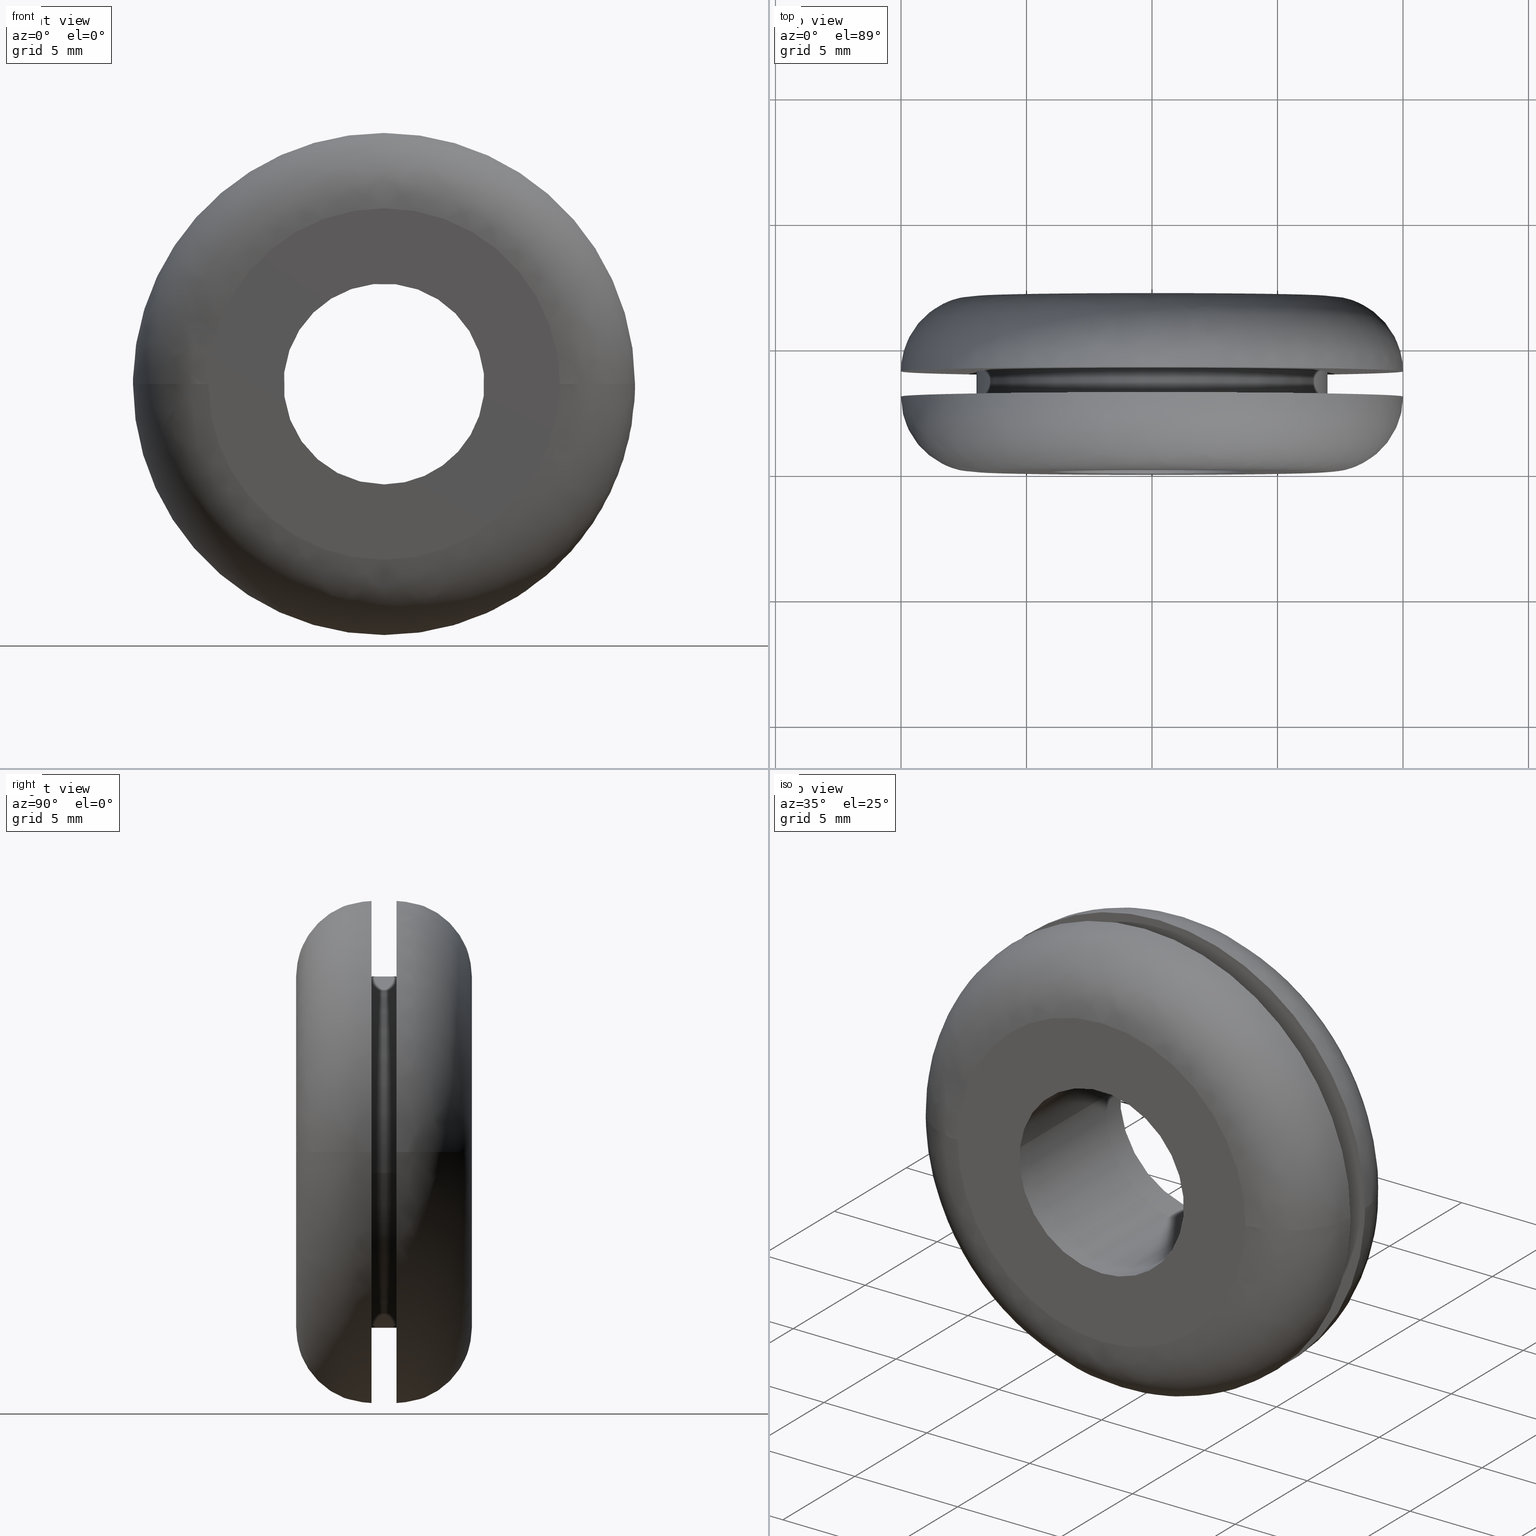
[diagram: canonical four-view strip — front | top / right | iso, engineering-drawing reading convention]
A machine part, canonical four-view strip (front | top / right | iso — engineering-drawing reading convention). The complete STEP part file that produces these views, byte-faithful:
ISO-10303-21;
HEADER;

FILE_DESCRIPTION( (''), '2;1');
FILE_NAME ('PC50.12492.TM_B_8_1_CRUL_3430.stp','2019-12-19T13:37:30',(''),(''),'spGate 15.6.1','','');

FILE_SCHEMA (('AUTOMOTIVE_DESIGN'));
ENDSEC;

DATA;
#10=(GEOMETRIC_REPRESENTATION_CONTEXT(3) GLOBAL_UNCERTAINTY_ASSIGNED_CONTEXT((#11)) GLOBAL_UNIT_ASSIGNED_CONTEXT((#12,#13,#14)) REPRESENTATION_CONTEXT('ID1','3D'));
#11=UNCERTAINTY_MEASURE_WITH_UNIT(LENGTH_MEASURE(0.01),#15,'DISTANCE_ACCURACY_VALUE','Maximum model space distance between geometric entities at asserted connectivities');
#12=(NAMED_UNIT(*) SI_UNIT($,.STERADIAN.) SOLID_ANGLE_UNIT());
#13=(CONVERSION_BASED_UNIT('DEGREE',#16) NAMED_UNIT(#17) PLANE_ANGLE_UNIT());
#14=(LENGTH_UNIT() NAMED_UNIT(*) SI_UNIT(.MILLI.,.METRE.));
#15=(LENGTH_UNIT() NAMED_UNIT(*) SI_UNIT(.MILLI.,.METRE.));
#16=PLANE_ANGLE_MEASURE_WITH_UNIT(PLANE_ANGLE_MEASURE(0.01745329252),#18);
#17=DIMENSIONAL_EXPONENTS(0.0,0.0,0.0,0.0,0.0,0.0,0.0);
#18=(NAMED_UNIT(*) PLANE_ANGLE_UNIT() SI_UNIT($,.RADIAN.));
#19=MANIFOLD_SOLID_BREP('TM_B_8_1',#31);
#20=ADVANCED_BREP_SHAPE_REPRESENTATION('',(#19),#10);
#21=APPLICATION_CONTEXT('');
#22=APPLICATION_PROTOCOL_DEFINITION('International Standard','automotive_design',1999,#21);
#23=PRODUCT_DEFINITION_CONTEXT('',#21,'design');
#24=PRODUCT_CONTEXT('',#21,'mechanical');
#25=PRODUCT('','','',(#24));
#26=PRODUCT_DEFINITION_FORMATION_WITH_SPECIFIED_SOURCE('','',#25,.NOT_KNOWN.);
#27=PRODUCT_RELATED_PRODUCT_CATEGORY('tool','tool',(#25));
#28=PRODUCT_DEFINITION('','',#26,#23);
#29=PRODUCT_DEFINITION_SHAPE('','',#28);
#30=SHAPE_DEFINITION_REPRESENTATION(#29,#20);
#31=CLOSED_SHELL('',(#40,#41,#42,#43,#44,#45,#46,#47,#48,#49,#50,#51));
#32=COLOUR_RGB('',0.00000000000E+000,0.00000000000E+000,0.00000000000E+000);
#33=FILL_AREA_STYLE_COLOUR('',#32);
#34=FILL_AREA_STYLE('',(#33));
#35=SURFACE_STYLE_FILL_AREA(#34);
#36=SURFACE_SIDE_STYLE('',(#35));
#37=SURFACE_STYLE_USAGE(.BOTH.,#36);
#38=PRESENTATION_STYLE_ASSIGNMENT((#37));
#39=STYLED_ITEM('',(#38),#19);
#40=ADVANCED_FACE('',(#53,#54),#52,.F.);
#41=ADVANCED_FACE('',(#64,#65),#63,.F.);
#42=ADVANCED_FACE('',(#75,#76),#74,.F.);
#43=ADVANCED_FACE('',(#86,#87),#85,.F.);
#44=ADVANCED_FACE('',(#97),#96,.T.);
#45=ADVANCED_FACE('',(#107),#106,.T.);
#46=ADVANCED_FACE('',(#117),#116,.F.);
#47=ADVANCED_FACE('',(#127),#126,.F.);
#48=ADVANCED_FACE('',(#137),#136,.T.);
#49=ADVANCED_FACE('',(#147),#146,.T.);
#50=ADVANCED_FACE('',(#157),#156,.T.);
#51=ADVANCED_FACE('',(#167),#166,.T.);
#52=PLANE('',#179);
#53=FACE_OUTER_BOUND('',#180,.T.);
#54=FACE_BOUND('',#181,.T.);
#55=COLOUR_RGB('',1.00000000000E+000,1.00000000000E+000,1.00000000000E+000);
#56=FILL_AREA_STYLE_COLOUR('',#55);
#57=FILL_AREA_STYLE('',(#56));
#58=SURFACE_STYLE_FILL_AREA(#57);
#59=SURFACE_SIDE_STYLE('',(#58));
#60=SURFACE_STYLE_USAGE(.BOTH.,#59);
#61=PRESENTATION_STYLE_ASSIGNMENT((#60));
#62=STYLED_ITEM('',(#61),#40);
#63=PLANE('',#185);
#64=FACE_OUTER_BOUND('',#186,.T.);
#65=FACE_BOUND('',#187,.T.);
#66=COLOUR_RGB('',1.00000000000E+000,1.00000000000E+000,1.00000000000E+000);
#67=FILL_AREA_STYLE_COLOUR('',#66);
#68=FILL_AREA_STYLE('',(#67));
#69=SURFACE_STYLE_FILL_AREA(#68);
#70=SURFACE_SIDE_STYLE('',(#69));
#71=SURFACE_STYLE_USAGE(.BOTH.,#70);
#72=PRESENTATION_STYLE_ASSIGNMENT((#71));
#73=STYLED_ITEM('',(#72),#41);
#74=PLANE('',#191);
#75=FACE_OUTER_BOUND('',#192,.T.);
#76=FACE_BOUND('',#193,.T.);
#77=COLOUR_RGB('',1.00000000000E+000,1.00000000000E+000,1.00000000000E+000);
#78=FILL_AREA_STYLE_COLOUR('',#77);
#79=FILL_AREA_STYLE('',(#78));
#80=SURFACE_STYLE_FILL_AREA(#79);
#81=SURFACE_SIDE_STYLE('',(#80));
#82=SURFACE_STYLE_USAGE(.BOTH.,#81);
#83=PRESENTATION_STYLE_ASSIGNMENT((#82));
#84=STYLED_ITEM('',(#83),#42);
#85=PLANE('',#197);
#86=FACE_OUTER_BOUND('',#198,.T.);
#87=FACE_BOUND('',#199,.T.);
#88=COLOUR_RGB('',1.00000000000E+000,1.00000000000E+000,1.00000000000E+000);
#89=FILL_AREA_STYLE_COLOUR('',#88);
#90=FILL_AREA_STYLE('',(#89));
#91=SURFACE_STYLE_FILL_AREA(#90);
#92=SURFACE_SIDE_STYLE('',(#91));
#93=SURFACE_STYLE_USAGE(.BOTH.,#92);
#94=PRESENTATION_STYLE_ASSIGNMENT((#93));
#95=STYLED_ITEM('',(#94),#43);
#96=CYLINDRICAL_SURFACE('',#203,7.00000000000E+000);
#97=FACE_OUTER_BOUND('',#204,.T.);
#98=COLOUR_RGB('',1.00000000000E+000,1.00000000000E+000,1.00000000000E+000);
#99=FILL_AREA_STYLE_COLOUR('',#98);
#100=FILL_AREA_STYLE('',(#99));
#101=SURFACE_STYLE_FILL_AREA(#100);
#102=SURFACE_SIDE_STYLE('',(#101));
#103=SURFACE_STYLE_USAGE(.BOTH.,#102);
#104=PRESENTATION_STYLE_ASSIGNMENT((#103));
#105=STYLED_ITEM('',(#104),#44);
#106=CYLINDRICAL_SURFACE('',#208,7.00000000000E+000);
#107=FACE_OUTER_BOUND('',#209,.T.);
#108=COLOUR_RGB('',1.00000000000E+000,1.00000000000E+000,1.00000000000E+000);
#109=FILL_AREA_STYLE_COLOUR('',#108);
#110=FILL_AREA_STYLE('',(#109));
#111=SURFACE_STYLE_FILL_AREA(#110);
#112=SURFACE_SIDE_STYLE('',(#111));
#113=SURFACE_STYLE_USAGE(.BOTH.,#112);
#114=PRESENTATION_STYLE_ASSIGNMENT((#113));
#115=STYLED_ITEM('',(#114),#45);
#116=CYLINDRICAL_SURFACE('',#213,4.00000000000E+000);
#117=FACE_OUTER_BOUND('',#214,.T.);
#118=COLOUR_RGB('',1.00000000000E+000,1.00000000000E+000,1.00000000000E+000);
#119=FILL_AREA_STYLE_COLOUR('',#118);
#120=FILL_AREA_STYLE('',(#119));
#121=SURFACE_STYLE_FILL_AREA(#120);
#122=SURFACE_SIDE_STYLE('',(#121));
#123=SURFACE_STYLE_USAGE(.BOTH.,#122);
#124=PRESENTATION_STYLE_ASSIGNMENT((#123));
#125=STYLED_ITEM('',(#124),#46);
#126=CYLINDRICAL_SURFACE('',#218,4.00000000000E+000);
#127=FACE_OUTER_BOUND('',#219,.T.);
#128=COLOUR_RGB('',1.00000000000E+000,1.00000000000E+000,1.00000000000E+000);
#129=FILL_AREA_STYLE_COLOUR('',#128);
#130=FILL_AREA_STYLE('',(#129));
#131=SURFACE_STYLE_FILL_AREA(#130);
#132=SURFACE_SIDE_STYLE('',(#131));
#133=SURFACE_STYLE_USAGE(.BOTH.,#132);
#134=PRESENTATION_STYLE_ASSIGNMENT((#133));
#135=STYLED_ITEM('',(#134),#47);
#136=( BOUNDED_SURFACE() B_SPLINE_SURFACE( 2,2,((#220,#221,#222,#223,#224),(#225,#226,#227,#228,#229),(#230,#231,#232,#233,#234),(#235,#236,#237,#238,#239),(#240,#241,#242,#243,#244)), .UNSPECIFIED.,.F.,.F.,.F.) B_SPLINE_SURFACE_WITH_KNOTS((3,2,3),(3,2,3),(0.00000000000E+000,5.00000000000E-001,1.00000000000E+000),(0.00000000000E+000,5.00000000000E-001,1.00000000000E+000), .UNSPECIFIED. ) GEOMETRIC_REPRESENTATION_ITEM() RATIONAL_B_SPLINE_SURFACE(((1.00000000000E+000,7.07106781055E-001,1.00000000000E+000,7.07106781055E-001,1.00000000000E+000),(7.07106781187E-001,4.99999999907E-001,7.07106781187E-001,4.99999999907E-001,7.07106781187E-001),(1.00000000000E+000,7.07106781055E-001,1.00000000000E+000,7.07106781055E-001,1.00000000000E+000),(7.07106781187E-001,4.99999999907E-001,7.07106781187E-001,4.99999999907E-001,7.07106781187E-001),(1.00000000000E+000,7.07106781055E-001,1.00000000000E+000,7.07106781055E-001,1.00000000000E+000))) REPRESENTATION_ITEM('') SURFACE() );
#137=FACE_OUTER_BOUND('',#245,.T.);
#138=COLOUR_RGB('',1.00000000000E+000,1.00000000000E+000,1.00000000000E+000);
#139=FILL_AREA_STYLE_COLOUR('',#138);
#140=FILL_AREA_STYLE('',(#139));
#141=SURFACE_STYLE_FILL_AREA(#140);
#142=SURFACE_SIDE_STYLE('',(#141));
#143=SURFACE_STYLE_USAGE(.BOTH.,#142);
#144=PRESENTATION_STYLE_ASSIGNMENT((#143));
#145=STYLED_ITEM('',(#144),#48);
#146=( BOUNDED_SURFACE() B_SPLINE_SURFACE( 2,2,((#246,#247,#248,#249,#250),(#251,#252,#253,#254,#255),(#256,#257,#258,#259,#260),(#261,#262,#263,#264,#265),(#266,#267,#268,#269,#270)), .UNSPECIFIED.,.F.,.F.,.F.) B_SPLINE_SURFACE_WITH_KNOTS((3,2,3),(3,2,3),(0.00000000000E+000,5.00000000000E-001,1.00000000000E+000),(0.00000000000E+000,5.00000000000E-001,1.00000000000E+000), .UNSPECIFIED. ) GEOMETRIC_REPRESENTATION_ITEM() RATIONAL_B_SPLINE_SURFACE(((1.00000000000E+000,7.07106781055E-001,1.00000000000E+000,7.07106781055E-001,1.00000000000E+000),(7.07106781187E-001,4.99999999907E-001,7.07106781187E-001,4.99999999907E-001,7.07106781187E-001),(1.00000000000E+000,7.07106781055E-001,1.00000000000E+000,7.07106781055E-001,1.00000000000E+000),(7.07106781187E-001,4.99999999907E-001,7.07106781187E-001,4.99999999907E-001,7.07106781187E-001),(1.00000000000E+000,7.07106781055E-001,1.00000000000E+000,7.07106781055E-001,1.00000000000E+000))) REPRESENTATION_ITEM('') SURFACE() );
#147=FACE_OUTER_BOUND('',#271,.T.);
#148=COLOUR_RGB('',1.00000000000E+000,1.00000000000E+000,1.00000000000E+000);
#149=FILL_AREA_STYLE_COLOUR('',#148);
#150=FILL_AREA_STYLE('',(#149));
#151=SURFACE_STYLE_FILL_AREA(#150);
#152=SURFACE_SIDE_STYLE('',(#151));
#153=SURFACE_STYLE_USAGE(.BOTH.,#152);
#154=PRESENTATION_STYLE_ASSIGNMENT((#153));
#155=STYLED_ITEM('',(#154),#49);
#156=( BOUNDED_SURFACE() B_SPLINE_SURFACE( 2,2,((#272,#273,#274,#275,#276),(#277,#278,#279,#280,#281),(#282,#283,#284,#285,#286),(#287,#288,#289,#290,#291),(#292,#293,#294,#295,#296)), .UNSPECIFIED.,.F.,.F.,.F.) B_SPLINE_SURFACE_WITH_KNOTS((3,2,3),(3,2,3),(0.00000000000E+000,5.00000000000E-001,1.00000000000E+000),(0.00000000000E+000,5.00000000000E-001,1.00000000000E+000), .UNSPECIFIED. ) GEOMETRIC_REPRESENTATION_ITEM() RATIONAL_B_SPLINE_SURFACE(((1.00000000000E+000,7.07106780997E-001,1.00000000000E+000,7.07106780997E-001,1.00000000000E+000),(7.07106781187E-001,4.99999999866E-001,7.07106781187E-001,4.99999999866E-001,7.07106781187E-001),(1.00000000000E+000,7.07106780997E-001,1.00000000000E+000,7.07106780997E-001,1.00000000000E+000),(7.07106781187E-001,4.99999999866E-001,7.07106781187E-001,4.99999999866E-001,7.07106781187E-001),(1.00000000000E+000,7.07106780997E-001,1.00000000000E+000,7.07106780997E-001,1.00000000000E+000))) REPRESENTATION_ITEM('') SURFACE() );
#157=FACE_OUTER_BOUND('',#297,.T.);
#158=COLOUR_RGB('',1.00000000000E+000,1.00000000000E+000,1.00000000000E+000);
#159=FILL_AREA_STYLE_COLOUR('',#158);
#160=FILL_AREA_STYLE('',(#159));
#161=SURFACE_STYLE_FILL_AREA(#160);
#162=SURFACE_SIDE_STYLE('',(#161));
#163=SURFACE_STYLE_USAGE(.BOTH.,#162);
#164=PRESENTATION_STYLE_ASSIGNMENT((#163));
#165=STYLED_ITEM('',(#164),#50);
#166=( BOUNDED_SURFACE() B_SPLINE_SURFACE( 2,2,((#298,#299,#300,#301,#302),(#303,#304,#305,#306,#307),(#308,#309,#310,#311,#312),(#313,#314,#315,#316,#317),(#318,#319,#320,#321,#322)), .UNSPECIFIED.,.F.,.F.,.F.) B_SPLINE_SURFACE_WITH_KNOTS((3,2,3),(3,2,3),(0.00000000000E+000,5.00000000000E-001,1.00000000000E+000),(0.00000000000E+000,5.00000000000E-001,1.00000000000E+000), .UNSPECIFIED. ) GEOMETRIC_REPRESENTATION_ITEM() RATIONAL_B_SPLINE_SURFACE(((1.00000000000E+000,7.07106780997E-001,1.00000000000E+000,7.07106780997E-001,1.00000000000E+000),(7.07106781187E-001,4.99999999866E-001,7.07106781187E-001,4.99999999866E-001,7.07106781187E-001),(1.00000000000E+000,7.07106780997E-001,1.00000000000E+000,7.07106780997E-001,1.00000000000E+000),(7.07106781187E-001,4.99999999866E-001,7.07106781187E-001,4.99999999866E-001,7.07106781187E-001),(1.00000000000E+000,7.07106780997E-001,1.00000000000E+000,7.07106780997E-001,1.00000000000E+000))) REPRESENTATION_ITEM('') SURFACE() );
#167=FACE_OUTER_BOUND('',#323,.T.);
#168=COLOUR_RGB('',1.00000000000E+000,1.00000000000E+000,1.00000000000E+000);
#169=FILL_AREA_STYLE_COLOUR('',#168);
#170=FILL_AREA_STYLE('',(#169));
#171=SURFACE_STYLE_FILL_AREA(#170);
#172=SURFACE_SIDE_STYLE('',(#171));
#173=SURFACE_STYLE_USAGE(.BOTH.,#172);
#174=PRESENTATION_STYLE_ASSIGNMENT((#173));
#175=STYLED_ITEM('',(#174),#51);
#176=CARTESIAN_POINT('',(-1.22114496217E+001,4.00000000000E+000,-1.20000000000E+001));
#177=DIRECTION('',(0.00000000000E+000,1.00000000000E+000,0.00000000000E+000));
#178=DIRECTION('',(0.00000000000E+000,0.00000000000E+000,1.00000000000E+000));
#179=AXIS2_PLACEMENT_3D('',#176,#177,#178);
#180=EDGE_LOOP('',(#324,#325,#326,#327,#328,#329));
#181=EDGE_LOOP('',(#330,#331,#332));
#182=CARTESIAN_POINT('',(-1.45492267838E+001,7.00000000000E+000,1.61000000002E+001));
#183=DIRECTION('',(0.00000000000E+000,-1.00000000000E+000,0.00000000000E+000));
#184=DIRECTION('',(0.00000000000E+000,0.00000000000E+000,-1.00000000000E+000));
#185=AXIS2_PLACEMENT_3D('',#182,#183,#184);
#186=EDGE_LOOP('',(#333,#334,#335));
#187=EDGE_LOOP('',(#336,#337,#338));
#188=CARTESIAN_POINT('',(-1.23054473375E+001,3.00000000000E+000,1.20000000000E+001));
#189=DIRECTION('',(0.00000000000E+000,-1.00000000000E+000,0.00000000000E+000));
#190=DIRECTION('',(0.00000000000E+000,0.00000000000E+000,-1.00000000000E+000));
#191=AXIS2_PLACEMENT_3D('',#188,#189,#190);
#192=EDGE_LOOP('',(#339,#340,#341,#342,#343,#344));
#193=EDGE_LOOP('',(#345,#346,#347));
#194=CARTESIAN_POINT('',(-1.45492267837E+001,-1.03351600000E-015,-1.61000000001E+001));
#195=DIRECTION('',(0.00000000000E+000,1.00000000000E+000,0.00000000000E+000));
#196=DIRECTION('',(0.00000000000E+000,0.00000000000E+000,1.00000000000E+000));
#197=AXIS2_PLACEMENT_3D('',#194,#195,#196);
#198=EDGE_LOOP('',(#348,#349,#350));
#199=EDGE_LOOP('',(#351,#352,#353));
#200=CARTESIAN_POINT('',(5.74092842048E-016,4.02500000000E+000,9.87831843366E-016));
#201=DIRECTION('',(5.05055682711E-016,1.00000000000E+000,4.78646234808E-015));
#202=DIRECTION('',(-9.93009526364E-001,-6.34413156929E-017,1.18034234657E-001));
#203=AXIS2_PLACEMENT_3D('',#200,#201,#202);
#204=EDGE_LOOP('',(#354,#355,#356,#357));
#205=CARTESIAN_POINT('',(5.74092842048E-016,4.02500000000E+000,9.87831843366E-016));
#206=DIRECTION('',(5.05055682711E-016,1.00000000000E+000,4.78646234808E-015));
#207=DIRECTION('',(-9.93009526364E-001,-6.34413156929E-017,1.18034234657E-001));
#208=AXIS2_PLACEMENT_3D('',#205,#206,#207);
#209=EDGE_LOOP('',(#358,#359,#360,#361,#362,#363));
#210=CARTESIAN_POINT('',(7.00264927072E-017,7.17500000000E+000,-1.45260831833E-015));
#211=DIRECTION('',(-4.60583929913E-017,1.00000000000E+000,-3.87484386562E-016));
#212=DIRECTION('',(-9.93009526364E-001,-1.47911419729E-031,1.18034234657E-001));
#213=AXIS2_PLACEMENT_3D('',#210,#211,#212);
#214=EDGE_LOOP('',(#364,#365,#366,#367));
#215=CARTESIAN_POINT('',(7.00264927072E-017,7.17500000000E+000,-1.45260831833E-015));
#216=DIRECTION('',(-4.60583929913E-017,1.00000000000E+000,-3.87484386562E-016));
#217=DIRECTION('',(-9.93009526364E-001,-1.47911419729E-031,1.18034234657E-001));
#218=AXIS2_PLACEMENT_3D('',#215,#216,#217);
#219=EDGE_LOOP('',(#368,#369,#370,#371,#372,#373));
#220=CARTESIAN_POINT('',(-1.00000000000E+001,3.00000000000E+000,-3.79958651348E-015));
#221=CARTESIAN_POINT('',(-1.00000000000E+001,-1.11198846633E-009,-4.43401791642E-015));
#222=CARTESIAN_POINT('',(-6.99999999889E+000,2.66453525910E-015,-4.06663600990E-015));
#223=CARTESIAN_POINT('',(-3.99999999778E+000,1.11199411866E-009,-3.69925410338E-015));
#224=CARTESIAN_POINT('',(-4.00000000000E+000,3.00000000222E+000,-3.06482270071E-015));
#225=CARTESIAN_POINT('',(-1.00000000000E+001,3.00000000000E+000,-1.00000000000E+001));
#226=CARTESIAN_POINT('',(-1.00000000000E+001,-1.11198653759E-009,-1.00000000000E+001));
#227=CARTESIAN_POINT('',(-6.99999999889E+000,3.84441556344E-015,-6.99999999889E+000));
#228=CARTESIAN_POINT('',(-3.99999999778E+000,1.11199526698E-009,-3.99999999778E+000));
#229=CARTESIAN_POINT('',(-4.00000000000E+000,3.00000000222E+000,-4.00000000000E+000));
#230=CARTESIAN_POINT('',(-1.98980225972E-015,3.00000000000E+000,-1.00000000000E+001));
#231=CARTESIAN_POINT('',(-2.65695287611E-015,-1.11198846633E-009,-1.00000000000E+001));
#232=CARTESIAN_POINT('',(-2.84063776221E-015,2.66453525910E-015,-6.99999999889E+000));
#233=CARTESIAN_POINT('',(-3.02432264830E-015,1.11199411866E-009,-3.99999999778E+000));
#234=CARTESIAN_POINT('',(-2.35717203177E-015,3.00000000222E+000,-4.00000000000E+000));
#235=CARTESIAN_POINT('',(1.00000000000E+001,3.00000000000E+000,-1.00000000000E+001));
#236=CARTESIAN_POINT('',(1.00000000000E+001,-1.11199123862E-009,-1.00000000000E+001));
#237=CARTESIAN_POINT('',(6.99999999889E+000,8.88178419700E-016,-6.99999999889E+000));
#238=CARTESIAN_POINT('',(3.99999999778E+000,1.11199349063E-009,-3.99999999778E+000));
#239=CARTESIAN_POINT('',(4.00000000000E+000,3.00000000222E+000,-4.00000000000E+000));
#240=CARTESIAN_POINT('',(1.00000000000E+001,3.00000000000E+000,-2.57502060498E-015));
#241=CARTESIAN_POINT('',(1.00000000000E+001,-1.11199286259E-009,-3.20945200792E-015));
#242=CARTESIAN_POINT('',(6.99999999889E+000,-4.44089209850E-016,-3.20943987409E-015));
#243=CARTESIAN_POINT('',(3.99999999778E+000,1.11199223455E-009,-3.20942774026E-015));
#244=CARTESIAN_POINT('',(4.00000000000E+000,3.00000000222E+000,-2.57499633731E-015));
#245=EDGE_LOOP('',(#374,#375,#376,#377,#378,#379));
#246=CARTESIAN_POINT('',(1.00000000000E+001,3.00000000000E+000,-2.57502060498E-015));
#247=CARTESIAN_POINT('',(1.00000000000E+001,-1.11199349063E-009,-3.20945200792E-015));
#248=CARTESIAN_POINT('',(6.99999999889E+000,-8.88178419700E-016,-3.20943987409E-015));
#249=CARTESIAN_POINT('',(3.99999999778E+000,1.11199160652E-009,-3.20942774026E-015));
#250=CARTESIAN_POINT('',(4.00000000000E+000,3.00000000222E+000,-2.57499633731E-015));
#251=CARTESIAN_POINT('',(1.00000000000E+001,3.00000000000E+000,1.00000000000E+001));
#252=CARTESIAN_POINT('',(1.00000000000E+001,-1.11199541937E-009,1.00000000000E+001));
#253=CARTESIAN_POINT('',(6.99999999889E+000,-2.06805872404E-015,6.99999999889E+000));
#254=CARTESIAN_POINT('',(3.99999999778E+000,1.11199045820E-009,3.99999999778E+000));
#255=CARTESIAN_POINT('',(4.00000000000E+000,3.00000000222E+000,4.00000000000E+000));
#256=CARTESIAN_POINT('',(-1.98972136907E-015,3.00000000000E+000,1.00000000000E+001));
#257=CARTESIAN_POINT('',(-2.65687198546E-015,-1.11199349063E-009,1.00000000000E+001));
#258=CARTESIAN_POINT('',(-2.84058113875E-015,-8.88178419700E-016,6.99999999889E+000));
#259=CARTESIAN_POINT('',(-3.02429029204E-015,1.11199160652E-009,3.99999999778E+000));
#260=CARTESIAN_POINT('',(-2.35713967551E-015,3.00000000222E+000,4.00000000000E+000));
#261=CARTESIAN_POINT('',(-1.00000000000E+001,3.00000000000E+000,1.00000000000E+001));
#262=CARTESIAN_POINT('',(-1.00000000000E+001,-1.11199071834E-009,1.00000000000E+001));
#263=CARTESIAN_POINT('',(-6.99999999889E+000,8.88178419700E-016,6.99999999889E+000));
#264=CARTESIAN_POINT('',(-3.99999999778E+000,1.11199223455E-009,3.99999999778E+000));
#265=CARTESIAN_POINT('',(-4.00000000000E+000,3.00000000222E+000,4.00000000000E+000));
#266=CARTESIAN_POINT('',(-1.00000000000E+001,3.00000000000E+000,-1.35029291518E-015));
#267=CARTESIAN_POINT('',(-1.00000000000E+001,-1.11198909437E-009,-1.98472431813E-015));
#268=CARTESIAN_POINT('',(-6.99999999889E+000,2.22044604925E-015,-2.35213049137E-015));
#269=CARTESIAN_POINT('',(-3.99999999778E+000,1.11199349063E-009,-2.71953666461E-015));
#270=CARTESIAN_POINT('',(-4.00000000000E+000,3.00000000222E+000,-2.08510526139E-015));
#271=EDGE_LOOP('',(#380,#381,#382,#383,#384,#385,#386));
#272=CARTESIAN_POINT('',(-4.00000000002E+000,3.99999999678E+000,3.23415556568E-013));
#273=CARTESIAN_POINT('',(-3.99999999679E+000,6.99999999839E+000,2.49298796170E-013));
#274=CARTESIAN_POINT('',(-6.99999999840E+000,7.00000000001E+000,2.48931414224E-013));
#275=CARTESIAN_POINT('',(-1.00000000000E+001,7.00000000162E+000,2.48564032278E-013));
#276=CARTESIAN_POINT('',(-1.00000000000E+001,4.00000000001E+000,3.22680792676E-013));
#277=CARTESIAN_POINT('',(-4.00000000002E+000,3.99999999678E+000,-4.00000000001E+000));
#278=CARTESIAN_POINT('',(-3.99999999679E+000,6.99999999839E+000,-3.99999999678E+000));
#279=CARTESIAN_POINT('',(-6.99999999840E+000,7.00000000001E+000,-6.99999999840E+000));
#280=CARTESIAN_POINT('',(-1.00000000000E+001,7.00000000162E+000,-1.00000000000E+001));
#281=CARTESIAN_POINT('',(-1.00000000000E+001,4.00000000001E+000,-1.00000000000E+001));
#282=CARTESIAN_POINT('',(-8.02198380323E-012,3.99999999678E+000,-4.00000000001E+000));
#283=CARTESIAN_POINT('',(-6.38576301356E-012,6.99999999839E+000,-3.99999999678E+000));
#284=CARTESIAN_POINT('',(-6.38557932779E-012,7.00000000000E+000,-6.99999999840E+000));
#285=CARTESIAN_POINT('',(-6.38539564202E-012,7.00000000162E+000,-1.00000000000E+001));
#286=CARTESIAN_POINT('',(-8.02161643170E-012,4.00000000000E+000,-1.00000000000E+001));
#287=CARTESIAN_POINT('',(4.00000000000E+000,3.99999999678E+000,-4.00000000001E+000));
#288=CARTESIAN_POINT('',(3.99999999678E+000,6.99999999839E+000,-3.99999999678E+000));
#289=CARTESIAN_POINT('',(6.99999999839E+000,7.00000000000E+000,-6.99999999840E+000));
#290=CARTESIAN_POINT('',(1.00000000000E+001,7.00000000161E+000,-1.00000000000E+001));
#291=CARTESIAN_POINT('',(1.00000000000E+001,4.00000000000E+000,-1.00000000000E+001));
#292=CARTESIAN_POINT('',(4.00000000000E+000,3.99999999678E+000,3.23905382932E-013));
#293=CARTESIAN_POINT('',(3.99999999678E+000,6.99999999839E+000,2.49788622533E-013));
#294=CARTESIAN_POINT('',(6.99999999839E+000,7.00000000000E+000,2.49788610360E-013));
#295=CARTESIAN_POINT('',(1.00000000000E+001,7.00000000161E+000,2.49788598186E-013));
#296=CARTESIAN_POINT('',(1.00000000000E+001,4.00000000000E+000,3.23905358585E-013));
#297=EDGE_LOOP('',(#387,#388,#389,#390,#391,#392,#393));
#298=CARTESIAN_POINT('',(4.00000000000E+000,3.99999999678E+000,3.23905382932E-013));
#299=CARTESIAN_POINT('',(3.99999999678E+000,6.99999999839E+000,2.49788622533E-013));
#300=CARTESIAN_POINT('',(6.99999999839E+000,7.00000000000E+000,2.49788610360E-013));
#301=CARTESIAN_POINT('',(1.00000000000E+001,7.00000000161E+000,2.49788598186E-013));
#302=CARTESIAN_POINT('',(1.00000000000E+001,4.00000000000E+000,3.23905358585E-013));
#303=CARTESIAN_POINT('',(4.00000000000E+000,3.99999999678E+000,4.00000000001E+000));
#304=CARTESIAN_POINT('',(3.99999999678E+000,6.99999999839E+000,3.99999999678E+000));
#305=CARTESIAN_POINT('',(6.99999999839E+000,7.00000000000E+000,6.99999999840E+000));
#306=CARTESIAN_POINT('',(1.00000000000E+001,7.00000000161E+000,1.00000000000E+001));
#307=CARTESIAN_POINT('',(1.00000000000E+001,4.00000000000E+000,1.00000000000E+001));
#308=CARTESIAN_POINT('',(-8.02198377088E-012,3.99999999678E+000,4.00000000001E+000));
#309=CARTESIAN_POINT('',(-6.38576298120E-012,6.99999999839E+000,3.99999999678E+000));
#310=CARTESIAN_POINT('',(-6.38557927117E-012,7.00000000000E+000,6.99999999840E+000));
#311=CARTESIAN_POINT('',(-6.38539556113E-012,7.00000000162E+000,1.00000000000E+001));
#312=CARTESIAN_POINT('',(-8.02161635081E-012,4.00000000000E+000,1.00000000000E+001));
#313=CARTESIAN_POINT('',(-4.00000000002E+000,3.99999999678E+000,4.00000000001E+000));
#314=CARTESIAN_POINT('',(-3.99999999679E+000,6.99999999839E+000,3.99999999678E+000));
#315=CARTESIAN_POINT('',(-6.99999999840E+000,7.00000000001E+000,6.99999999840E+000));
#316=CARTESIAN_POINT('',(-1.00000000000E+001,7.00000000162E+000,1.00000000000E+001));
#317=CARTESIAN_POINT('',(-1.00000000000E+001,4.00000000001E+000,1.00000000000E+001));
#318=CARTESIAN_POINT('',(-4.00000000002E+000,3.99999999678E+000,3.24395274007E-013));
#319=CARTESIAN_POINT('',(-3.99999999679E+000,6.99999999839E+000,2.50278513609E-013));
#320=CARTESIAN_POINT('',(-6.99999999840E+000,7.00000000001E+000,2.50645919742E-013));
#321=CARTESIAN_POINT('',(-1.00000000000E+001,7.00000000162E+000,2.51013325876E-013));
#322=CARTESIAN_POINT('',(-1.00000000000E+001,4.00000000001E+000,3.25130086275E-013));
#323=EDGE_LOOP('',(#394,#395,#396,#397,#398,#399));
#324=ORIENTED_EDGE('',*,*,#400,.T.);
#325=ORIENTED_EDGE('',*,*,#401,.T.);
#326=ORIENTED_EDGE('',*,*,#402,.T.);
#327=ORIENTED_EDGE('',*,*,#403,.T.);
#328=ORIENTED_EDGE('',*,*,#404,.T.);
#329=ORIENTED_EDGE('',*,*,#405,.T.);
#330=ORIENTED_EDGE('',*,*,#406,.F.);
#331=ORIENTED_EDGE('',*,*,#407,.F.);
#332=ORIENTED_EDGE('',*,*,#408,.F.);
#333=ORIENTED_EDGE('',*,*,#409,.F.);
#334=ORIENTED_EDGE('',*,*,#410,.F.);
#335=ORIENTED_EDGE('',*,*,#411,.F.);
#336=ORIENTED_EDGE('',*,*,#412,.T.);
#337=ORIENTED_EDGE('',*,*,#413,.T.);
#338=ORIENTED_EDGE('',*,*,#414,.T.);
#339=ORIENTED_EDGE('',*,*,#415,.F.);
#340=ORIENTED_EDGE('',*,*,#416,.F.);
#341=ORIENTED_EDGE('',*,*,#417,.F.);
#342=ORIENTED_EDGE('',*,*,#418,.F.);
#343=ORIENTED_EDGE('',*,*,#419,.F.);
#344=ORIENTED_EDGE('',*,*,#420,.F.);
#345=ORIENTED_EDGE('',*,*,#421,.T.);
#346=ORIENTED_EDGE('',*,*,#422,.T.);
#347=ORIENTED_EDGE('',*,*,#423,.T.);
#348=ORIENTED_EDGE('',*,*,#424,.T.);
#349=ORIENTED_EDGE('',*,*,#425,.T.);
#350=ORIENTED_EDGE('',*,*,#426,.T.);
#351=ORIENTED_EDGE('',*,*,#427,.F.);
#352=ORIENTED_EDGE('',*,*,#428,.F.);
#353=ORIENTED_EDGE('',*,*,#429,.F.);
#354=ORIENTED_EDGE('',*,*,#407,.T.);
#355=ORIENTED_EDGE('',*,*,#430,.F.);
#356=ORIENTED_EDGE('',*,*,#422,.F.);
#357=ORIENTED_EDGE('',*,*,#431,.T.);
#358=ORIENTED_EDGE('',*,*,#421,.F.);
#359=ORIENTED_EDGE('',*,*,#423,.F.);
#360=ORIENTED_EDGE('',*,*,#430,.T.);
#361=ORIENTED_EDGE('',*,*,#406,.T.);
#362=ORIENTED_EDGE('',*,*,#408,.T.);
#363=ORIENTED_EDGE('',*,*,#431,.F.);
#364=ORIENTED_EDGE('',*,*,#428,.T.);
#365=ORIENTED_EDGE('',*,*,#432,.T.);
#366=ORIENTED_EDGE('',*,*,#413,.F.);
#367=ORIENTED_EDGE('',*,*,#433,.F.);
#368=ORIENTED_EDGE('',*,*,#412,.F.);
#369=ORIENTED_EDGE('',*,*,#414,.F.);
#370=ORIENTED_EDGE('',*,*,#432,.F.);
#371=ORIENTED_EDGE('',*,*,#427,.T.);
#372=ORIENTED_EDGE('',*,*,#429,.T.);
#373=ORIENTED_EDGE('',*,*,#433,.T.);
#374=ORIENTED_EDGE('',*,*,#425,.F.);
#375=ORIENTED_EDGE('',*,*,#434,.F.);
#376=ORIENTED_EDGE('',*,*,#415,.T.);
#377=ORIENTED_EDGE('',*,*,#420,.T.);
#378=ORIENTED_EDGE('',*,*,#419,.T.);
#379=ORIENTED_EDGE('',*,*,#435,.T.);
#380=ORIENTED_EDGE('',*,*,#418,.T.);
#381=ORIENTED_EDGE('',*,*,#417,.T.);
#382=ORIENTED_EDGE('',*,*,#416,.T.);
#383=ORIENTED_EDGE('',*,*,#434,.T.);
#384=ORIENTED_EDGE('',*,*,#424,.F.);
#385=ORIENTED_EDGE('',*,*,#426,.F.);
#386=ORIENTED_EDGE('',*,*,#435,.F.);
#387=ORIENTED_EDGE('',*,*,#401,.F.);
#388=ORIENTED_EDGE('',*,*,#400,.F.);
#389=ORIENTED_EDGE('',*,*,#405,.F.);
#390=ORIENTED_EDGE('',*,*,#436,.F.);
#391=ORIENTED_EDGE('',*,*,#409,.T.);
#392=ORIENTED_EDGE('',*,*,#411,.T.);
#393=ORIENTED_EDGE('',*,*,#437,.T.);
#394=ORIENTED_EDGE('',*,*,#410,.T.);
#395=ORIENTED_EDGE('',*,*,#436,.T.);
#396=ORIENTED_EDGE('',*,*,#404,.F.);
#397=ORIENTED_EDGE('',*,*,#403,.F.);
#398=ORIENTED_EDGE('',*,*,#402,.F.);
#399=ORIENTED_EDGE('',*,*,#437,.F.);
#400=EDGE_CURVE('',#438,#439,#440,.T.);
#401=EDGE_CURVE('',#439,#446,#447,.T.);
#402=EDGE_CURVE('',#446,#453,#454,.T.);
#403=EDGE_CURVE('',#453,#460,#461,.T.);
#404=EDGE_CURVE('',#460,#467,#468,.T.);
#405=EDGE_CURVE('',#467,#438,#474,.T.);
#406=EDGE_CURVE('',#480,#481,#482,.T.);
#407=EDGE_CURVE('',#488,#480,#489,.T.);
#408=EDGE_CURVE('',#481,#488,#495,.T.);
#409=EDGE_CURVE('',#501,#502,#503,.T.);
#410=EDGE_CURVE('',#509,#501,#510,.T.);
#411=EDGE_CURVE('',#502,#509,#516,.T.);
#412=EDGE_CURVE('',#522,#523,#524,.T.);
#413=EDGE_CURVE('',#523,#530,#531,.T.);
#414=EDGE_CURVE('',#530,#522,#537,.T.);
#415=EDGE_CURVE('',#543,#544,#545,.T.);
#416=EDGE_CURVE('',#551,#543,#552,.T.);
#417=EDGE_CURVE('',#558,#551,#559,.T.);
#418=EDGE_CURVE('',#565,#558,#566,.T.);
#419=EDGE_CURVE('',#572,#565,#573,.T.);
#420=EDGE_CURVE('',#544,#572,#579,.T.);
#421=EDGE_CURVE('',#585,#586,#587,.T.);
#422=EDGE_CURVE('',#586,#593,#594,.T.);
#423=EDGE_CURVE('',#593,#585,#600,.T.);
#424=EDGE_CURVE('',#606,#607,#608,.T.);
#425=EDGE_CURVE('',#607,#614,#615,.T.);
#426=EDGE_CURVE('',#614,#606,#621,.T.);
#427=EDGE_CURVE('',#627,#628,#629,.T.);
#428=EDGE_CURVE('',#635,#627,#636,.T.);
#429=EDGE_CURVE('',#628,#635,#642,.T.);
#430=EDGE_CURVE('',#593,#480,#648,.T.);
#431=EDGE_CURVE('',#586,#488,#654,.T.);
#432=EDGE_CURVE('',#627,#530,#660,.T.);
#433=EDGE_CURVE('',#635,#523,#666,.T.);
#434=EDGE_CURVE('',#543,#607,#672,.T.);
#435=EDGE_CURVE('',#565,#614,#678,.T.);
#436=EDGE_CURVE('',#501,#467,#684,.T.);
#437=EDGE_CURVE('',#509,#446,#690,.T.);
#438=VERTEX_POINT('',#696);
#439=VERTEX_POINT('',#697);
#440=CIRCLE('',#701,1.00000000007E+001);
#441=COLOUR_RGB('',1.00000000000E+000,1.00000000000E+000,1.00000000000E+000);
#442=DRAUGHTING_PRE_DEFINED_CURVE_FONT('continuous');
#443=CURVE_STYLE( '',#442, POSITIVE_LENGTH_MEASURE(1.00000000000E-006),#441);
#444=PRESENTATION_STYLE_ASSIGNMENT((#443));
#445=STYLED_ITEM('',(#444),#400);
#446=VERTEX_POINT('',#702);
#447=CIRCLE('',#706,1.00000000000E+001);
#448=COLOUR_RGB('',1.00000000000E+000,1.00000000000E+000,1.00000000000E+000);
#449=DRAUGHTING_PRE_DEFINED_CURVE_FONT('continuous');
#450=CURVE_STYLE( '',#449, POSITIVE_LENGTH_MEASURE(1.00000000000E-006),#448);
#451=PRESENTATION_STYLE_ASSIGNMENT((#450));
#452=STYLED_ITEM('',(#451),#401);
#453=VERTEX_POINT('',#707);
#454=CIRCLE('',#711,1.00000000000E+001);
#455=COLOUR_RGB('',1.00000000000E+000,1.00000000000E+000,1.00000000000E+000);
#456=DRAUGHTING_PRE_DEFINED_CURVE_FONT('continuous');
#457=CURVE_STYLE( '',#456, POSITIVE_LENGTH_MEASURE(1.00000000000E-006),#455);
#458=PRESENTATION_STYLE_ASSIGNMENT((#457));
#459=STYLED_ITEM('',(#458),#402);
#460=VERTEX_POINT('',#712);
#461=CIRCLE('',#716,1.00000000000E+001);
#462=COLOUR_RGB('',1.00000000000E+000,1.00000000000E+000,1.00000000000E+000);
#463=DRAUGHTING_PRE_DEFINED_CURVE_FONT('continuous');
#464=CURVE_STYLE( '',#463, POSITIVE_LENGTH_MEASURE(1.00000000000E-006),#462);
#465=PRESENTATION_STYLE_ASSIGNMENT((#464));
#466=STYLED_ITEM('',(#465),#403);
#467=VERTEX_POINT('',#717);
#468=CIRCLE('',#721,1.00000000000E+001);
#469=COLOUR_RGB('',1.00000000000E+000,1.00000000000E+000,1.00000000000E+000);
#470=DRAUGHTING_PRE_DEFINED_CURVE_FONT('continuous');
#471=CURVE_STYLE( '',#470, POSITIVE_LENGTH_MEASURE(1.00000000000E-006),#469);
#472=PRESENTATION_STYLE_ASSIGNMENT((#471));
#473=STYLED_ITEM('',(#472),#404);
#474=CIRCLE('',#725,1.00000000000E+001);
#475=COLOUR_RGB('',1.00000000000E+000,1.00000000000E+000,1.00000000000E+000);
#476=DRAUGHTING_PRE_DEFINED_CURVE_FONT('continuous');
#477=CURVE_STYLE( '',#476, POSITIVE_LENGTH_MEASURE(1.00000000000E-006),#475);
#478=PRESENTATION_STYLE_ASSIGNMENT((#477));
#479=STYLED_ITEM('',(#478),#405);
#480=VERTEX_POINT('',#726);
#481=VERTEX_POINT('',#727);
#482=CIRCLE('',#731,7.00000000000E+000);
#483=COLOUR_RGB('',1.00000000000E+000,1.00000000000E+000,1.00000000000E+000);
#484=DRAUGHTING_PRE_DEFINED_CURVE_FONT('continuous');
#485=CURVE_STYLE( '',#484, POSITIVE_LENGTH_MEASURE(1.00000000000E-006),#483);
#486=PRESENTATION_STYLE_ASSIGNMENT((#485));
#487=STYLED_ITEM('',(#486),#406);
#488=VERTEX_POINT('',#732);
#489=CIRCLE('',#736,7.00000000000E+000);
#490=COLOUR_RGB('',1.00000000000E+000,1.00000000000E+000,1.00000000000E+000);
#491=DRAUGHTING_PRE_DEFINED_CURVE_FONT('continuous');
#492=CURVE_STYLE( '',#491, POSITIVE_LENGTH_MEASURE(1.00000000000E-006),#490);
#493=PRESENTATION_STYLE_ASSIGNMENT((#492));
#494=STYLED_ITEM('',(#493),#407);
#495=CIRCLE('',#740,7.00000000000E+000);
#496=COLOUR_RGB('',1.00000000000E+000,1.00000000000E+000,1.00000000000E+000);
#497=DRAUGHTING_PRE_DEFINED_CURVE_FONT('continuous');
#498=CURVE_STYLE( '',#497, POSITIVE_LENGTH_MEASURE(1.00000000000E-006),#496);
#499=PRESENTATION_STYLE_ASSIGNMENT((#498));
#500=STYLED_ITEM('',(#499),#408);
#501=VERTEX_POINT('',#741);
#502=VERTEX_POINT('',#742);
#503=CIRCLE('',#746,7.00000000011E+000);
#504=COLOUR_RGB('',1.00000000000E+000,1.00000000000E+000,1.00000000000E+000);
#505=DRAUGHTING_PRE_DEFINED_CURVE_FONT('continuous');
#506=CURVE_STYLE( '',#505, POSITIVE_LENGTH_MEASURE(1.00000000000E-006),#504);
#507=PRESENTATION_STYLE_ASSIGNMENT((#506));
#508=STYLED_ITEM('',(#507),#409);
#509=VERTEX_POINT('',#747);
#510=CIRCLE('',#751,7.00000000011E+000);
#511=COLOUR_RGB('',1.00000000000E+000,1.00000000000E+000,1.00000000000E+000);
#512=DRAUGHTING_PRE_DEFINED_CURVE_FONT('continuous');
#513=CURVE_STYLE( '',#512, POSITIVE_LENGTH_MEASURE(1.00000000000E-006),#511);
#514=PRESENTATION_STYLE_ASSIGNMENT((#513));
#515=STYLED_ITEM('',(#514),#410);
#516=CIRCLE('',#755,7.00000000011E+000);
#517=COLOUR_RGB('',1.00000000000E+000,1.00000000000E+000,1.00000000000E+000);
#518=DRAUGHTING_PRE_DEFINED_CURVE_FONT('continuous');
#519=CURVE_STYLE( '',#518, POSITIVE_LENGTH_MEASURE(1.00000000000E-006),#517);
#520=PRESENTATION_STYLE_ASSIGNMENT((#519));
#521=STYLED_ITEM('',(#520),#411);
#522=VERTEX_POINT('',#756);
#523=VERTEX_POINT('',#757);
#524=CIRCLE('',#761,3.99999999999E+000);
#525=COLOUR_RGB('',1.00000000000E+000,1.00000000000E+000,1.00000000000E+000);
#526=DRAUGHTING_PRE_DEFINED_CURVE_FONT('continuous');
#527=CURVE_STYLE( '',#526, POSITIVE_LENGTH_MEASURE(1.00000000000E-006),#525);
#528=PRESENTATION_STYLE_ASSIGNMENT((#527));
#529=STYLED_ITEM('',(#528),#412);
#530=VERTEX_POINT('',#762);
#531=CIRCLE('',#766,3.99999999999E+000);
#532=COLOUR_RGB('',1.00000000000E+000,1.00000000000E+000,1.00000000000E+000);
#533=DRAUGHTING_PRE_DEFINED_CURVE_FONT('continuous');
#534=CURVE_STYLE( '',#533, POSITIVE_LENGTH_MEASURE(1.00000000000E-006),#532);
#535=PRESENTATION_STYLE_ASSIGNMENT((#534));
#536=STYLED_ITEM('',(#535),#413);
#537=CIRCLE('',#770,3.99999999999E+000);
#538=COLOUR_RGB('',1.00000000000E+000,1.00000000000E+000,1.00000000000E+000);
#539=DRAUGHTING_PRE_DEFINED_CURVE_FONT('continuous');
#540=CURVE_STYLE( '',#539, POSITIVE_LENGTH_MEASURE(1.00000000000E-006),#538);
#541=PRESENTATION_STYLE_ASSIGNMENT((#540));
#542=STYLED_ITEM('',(#541),#414);
#543=VERTEX_POINT('',#771);
#544=VERTEX_POINT('',#772);
#545=CIRCLE('',#776,1.00000000000E+001);
#546=COLOUR_RGB('',1.00000000000E+000,1.00000000000E+000,1.00000000000E+000);
#547=DRAUGHTING_PRE_DEFINED_CURVE_FONT('continuous');
#548=CURVE_STYLE( '',#547, POSITIVE_LENGTH_MEASURE(1.00000000000E-006),#546);
#549=PRESENTATION_STYLE_ASSIGNMENT((#548));
#550=STYLED_ITEM('',(#549),#415);
#551=VERTEX_POINT('',#777);
#552=CIRCLE('',#781,1.00000000000E+001);
#553=COLOUR_RGB('',1.00000000000E+000,1.00000000000E+000,1.00000000000E+000);
#554=DRAUGHTING_PRE_DEFINED_CURVE_FONT('continuous');
#555=CURVE_STYLE( '',#554, POSITIVE_LENGTH_MEASURE(1.00000000000E-006),#553);
#556=PRESENTATION_STYLE_ASSIGNMENT((#555));
#557=STYLED_ITEM('',(#556),#416);
#558=VERTEX_POINT('',#782);
#559=CIRCLE('',#786,1.00000000000E+001);
#560=COLOUR_RGB('',1.00000000000E+000,1.00000000000E+000,1.00000000000E+000);
#561=DRAUGHTING_PRE_DEFINED_CURVE_FONT('continuous');
#562=CURVE_STYLE( '',#561, POSITIVE_LENGTH_MEASURE(1.00000000000E-006),#560);
#563=PRESENTATION_STYLE_ASSIGNMENT((#562));
#564=STYLED_ITEM('',(#563),#417);
#565=VERTEX_POINT('',#787);
#566=CIRCLE('',#791,1.00000000000E+001);
#567=COLOUR_RGB('',1.00000000000E+000,1.00000000000E+000,1.00000000000E+000);
#568=DRAUGHTING_PRE_DEFINED_CURVE_FONT('continuous');
#569=CURVE_STYLE( '',#568, POSITIVE_LENGTH_MEASURE(1.00000000000E-006),#567);
#570=PRESENTATION_STYLE_ASSIGNMENT((#569));
#571=STYLED_ITEM('',(#570),#418);
#572=VERTEX_POINT('',#792);
#573=CIRCLE('',#796,1.00000000000E+001);
#574=COLOUR_RGB('',1.00000000000E+000,1.00000000000E+000,1.00000000000E+000);
#575=DRAUGHTING_PRE_DEFINED_CURVE_FONT('continuous');
#576=CURVE_STYLE( '',#575, POSITIVE_LENGTH_MEASURE(1.00000000000E-006),#574);
#577=PRESENTATION_STYLE_ASSIGNMENT((#576));
#578=STYLED_ITEM('',(#577),#419);
#579=CIRCLE('',#800,1.00000000000E+001);
#580=COLOUR_RGB('',1.00000000000E+000,1.00000000000E+000,1.00000000000E+000);
#581=DRAUGHTING_PRE_DEFINED_CURVE_FONT('continuous');
#582=CURVE_STYLE( '',#581, POSITIVE_LENGTH_MEASURE(1.00000000000E-006),#580);
#583=PRESENTATION_STYLE_ASSIGNMENT((#582));
#584=STYLED_ITEM('',(#583),#420);
#585=VERTEX_POINT('',#801);
#586=VERTEX_POINT('',#802);
#587=CIRCLE('',#806,7.00000000000E+000);
#588=COLOUR_RGB('',1.00000000000E+000,1.00000000000E+000,1.00000000000E+000);
#589=DRAUGHTING_PRE_DEFINED_CURVE_FONT('continuous');
#590=CURVE_STYLE( '',#589, POSITIVE_LENGTH_MEASURE(1.00000000000E-006),#588);
#591=PRESENTATION_STYLE_ASSIGNMENT((#590));
#592=STYLED_ITEM('',(#591),#421);
#593=VERTEX_POINT('',#807);
#594=CIRCLE('',#811,7.00000000000E+000);
#595=COLOUR_RGB('',1.00000000000E+000,1.00000000000E+000,1.00000000000E+000);
#596=DRAUGHTING_PRE_DEFINED_CURVE_FONT('continuous');
#597=CURVE_STYLE( '',#596, POSITIVE_LENGTH_MEASURE(1.00000000000E-006),#595);
#598=PRESENTATION_STYLE_ASSIGNMENT((#597));
#599=STYLED_ITEM('',(#598),#422);
#600=CIRCLE('',#815,7.00000000000E+000);
#601=COLOUR_RGB('',1.00000000000E+000,1.00000000000E+000,1.00000000000E+000);
#602=DRAUGHTING_PRE_DEFINED_CURVE_FONT('continuous');
#603=CURVE_STYLE( '',#602, POSITIVE_LENGTH_MEASURE(1.00000000000E-006),#601);
#604=PRESENTATION_STYLE_ASSIGNMENT((#603));
#605=STYLED_ITEM('',(#604),#423);
#606=VERTEX_POINT('',#816);
#607=VERTEX_POINT('',#817);
#608=CIRCLE('',#821,7.00000000004E+000);
#609=COLOUR_RGB('',1.00000000000E+000,1.00000000000E+000,1.00000000000E+000);
#610=DRAUGHTING_PRE_DEFINED_CURVE_FONT('continuous');
#611=CURVE_STYLE( '',#610, POSITIVE_LENGTH_MEASURE(1.00000000000E-006),#609);
#612=PRESENTATION_STYLE_ASSIGNMENT((#611));
#613=STYLED_ITEM('',(#612),#424);
#614=VERTEX_POINT('',#822);
#615=CIRCLE('',#826,7.00000000004E+000);
#616=COLOUR_RGB('',1.00000000000E+000,1.00000000000E+000,1.00000000000E+000);
#617=DRAUGHTING_PRE_DEFINED_CURVE_FONT('continuous');
#618=CURVE_STYLE( '',#617, POSITIVE_LENGTH_MEASURE(1.00000000000E-006),#616);
#619=PRESENTATION_STYLE_ASSIGNMENT((#618));
#620=STYLED_ITEM('',(#619),#425);
#621=CIRCLE('',#830,7.00000000004E+000);
#622=COLOUR_RGB('',1.00000000000E+000,1.00000000000E+000,1.00000000000E+000);
#623=DRAUGHTING_PRE_DEFINED_CURVE_FONT('continuous');
#624=CURVE_STYLE( '',#623, POSITIVE_LENGTH_MEASURE(1.00000000000E-006),#622);
#625=PRESENTATION_STYLE_ASSIGNMENT((#624));
#626=STYLED_ITEM('',(#625),#426);
#627=VERTEX_POINT('',#831);
#628=VERTEX_POINT('',#832);
#629=CIRCLE('',#836,3.99999999999E+000);
#630=COLOUR_RGB('',1.00000000000E+000,1.00000000000E+000,1.00000000000E+000);
#631=DRAUGHTING_PRE_DEFINED_CURVE_FONT('continuous');
#632=CURVE_STYLE( '',#631, POSITIVE_LENGTH_MEASURE(1.00000000000E-006),#630);
#633=PRESENTATION_STYLE_ASSIGNMENT((#632));
#634=STYLED_ITEM('',(#633),#427);
#635=VERTEX_POINT('',#837);
#636=CIRCLE('',#841,3.99999999999E+000);
#637=COLOUR_RGB('',1.00000000000E+000,1.00000000000E+000,1.00000000000E+000);
#638=DRAUGHTING_PRE_DEFINED_CURVE_FONT('continuous');
#639=CURVE_STYLE( '',#638, POSITIVE_LENGTH_MEASURE(1.00000000000E-006),#637);
#640=PRESENTATION_STYLE_ASSIGNMENT((#639));
#641=STYLED_ITEM('',(#640),#428);
#642=CIRCLE('',#845,3.99999999999E+000);
#643=COLOUR_RGB('',1.00000000000E+000,1.00000000000E+000,1.00000000000E+000);
#644=DRAUGHTING_PRE_DEFINED_CURVE_FONT('continuous');
#645=CURVE_STYLE( '',#644, POSITIVE_LENGTH_MEASURE(1.00000000000E-006),#643);
#646=PRESENTATION_STYLE_ASSIGNMENT((#645));
#647=STYLED_ITEM('',(#646),#429);
#648=(BOUNDED_CURVE() B_SPLINE_CURVE(1,(#846,#847),.UNSPECIFIED.,.F.,.F.) B_SPLINE_CURVE_WITH_KNOTS((2,2),(8.33333730703E-002,9.16666640476E-001),.UNSPECIFIED.) CURVE() GEOMETRIC_REPRESENTATION_ITEM() RATIONAL_B_SPLINE_CURVE((1.00000000000E+000,1.00000000000E+000)) REPRESENTATION_ITEM('') );
#649=COLOUR_RGB('',1.00000000000E+000,1.00000000000E+000,1.00000000000E+000);
#650=DRAUGHTING_PRE_DEFINED_CURVE_FONT('continuous');
#651=CURVE_STYLE( '',#650, POSITIVE_LENGTH_MEASURE(1.00000000000E-006),#649);
#652=PRESENTATION_STYLE_ASSIGNMENT((#651));
#653=STYLED_ITEM('',(#652),#430);
#654=(BOUNDED_CURVE() B_SPLINE_CURVE(1,(#848,#849),.UNSPECIFIED.,.F.,.F.) B_SPLINE_CURVE_WITH_KNOTS((2,2),(8.33333333348E-002,9.16666666667E-001),.UNSPECIFIED.) CURVE() GEOMETRIC_REPRESENTATION_ITEM() RATIONAL_B_SPLINE_CURVE((7.50000000000E-001,7.50000000000E-001)) REPRESENTATION_ITEM('') );
#655=COLOUR_RGB('',1.00000000000E+000,1.00000000000E+000,1.00000000000E+000);
#656=DRAUGHTING_PRE_DEFINED_CURVE_FONT('continuous');
#657=CURVE_STYLE( '',#656, POSITIVE_LENGTH_MEASURE(1.00000000000E-006),#655);
#658=PRESENTATION_STYLE_ASSIGNMENT((#657));
#659=STYLED_ITEM('',(#658),#431);
#660=(BOUNDED_CURVE() B_SPLINE_CURVE(1,(#850,#851),.UNSPECIFIED.,.F.,.F.) B_SPLINE_CURVE_WITH_KNOTS((2,2),(8.33333320912E-002,9.16666664070E-001),.UNSPECIFIED.) CURVE() GEOMETRIC_REPRESENTATION_ITEM() RATIONAL_B_SPLINE_CURVE((1.00000000000E+000,1.00000000000E+000)) REPRESENTATION_ITEM('') );
#661=COLOUR_RGB('',1.00000000000E+000,1.00000000000E+000,1.00000000000E+000);
#662=DRAUGHTING_PRE_DEFINED_CURVE_FONT('continuous');
#663=CURVE_STYLE( '',#662, POSITIVE_LENGTH_MEASURE(1.00000000000E-006),#661);
#664=PRESENTATION_STYLE_ASSIGNMENT((#663));
#665=STYLED_ITEM('',(#664),#432);
#666=(BOUNDED_CURVE() B_SPLINE_CURVE(1,(#852,#853),.UNSPECIFIED.,.F.,.F.) B_SPLINE_CURVE_WITH_KNOTS((2,2),(8.33333333333E-002,9.16666666667E-001),.UNSPECIFIED.) CURVE() GEOMETRIC_REPRESENTATION_ITEM() RATIONAL_B_SPLINE_CURVE((7.50000000000E-001,7.50000000000E-001)) REPRESENTATION_ITEM('') );
#667=COLOUR_RGB('',1.00000000000E+000,1.00000000000E+000,1.00000000000E+000);
#668=DRAUGHTING_PRE_DEFINED_CURVE_FONT('continuous');
#669=CURVE_STYLE( '',#668, POSITIVE_LENGTH_MEASURE(1.00000000000E-006),#667);
#670=PRESENTATION_STYLE_ASSIGNMENT((#669));
#671=STYLED_ITEM('',(#670),#433);
#672=(BOUNDED_CURVE() B_SPLINE_CURVE(2,(#854,#855,#856),.UNSPECIFIED.,.F.,.F.) B_SPLINE_CURVE_WITH_KNOTS((3,3),(0.00000000000E+000,5.00000000000E-001),.UNSPECIFIED.) CURVE() GEOMETRIC_REPRESENTATION_ITEM() RATIONAL_B_SPLINE_CURVE((1.00000000000E+000,7.07106781055E-001,1.00000000000E+000)) REPRESENTATION_ITEM('') );
#673=COLOUR_RGB('',1.00000000000E+000,1.00000000000E+000,1.00000000000E+000);
#674=DRAUGHTING_PRE_DEFINED_CURVE_FONT('continuous');
#675=CURVE_STYLE( '',#674, POSITIVE_LENGTH_MEASURE(1.00000000000E-006),#673);
#676=PRESENTATION_STYLE_ASSIGNMENT((#675));
#677=STYLED_ITEM('',(#676),#434);
#678=(BOUNDED_CURVE() B_SPLINE_CURVE(3,(#857,#858,#859,#860,#861),.UNSPECIFIED.,.F.,.F.) B_SPLINE_CURVE_WITH_KNOTS((4,1,4),(0.00000000000E+000,2.50000070662E-001,5.00000122709E-001),.UNSPECIFIED.) CURVE() GEOMETRIC_REPRESENTATION_ITEM() RATIONAL_B_SPLINE_CURVE((1.00000000000E+000,1.00000000000E+000,1.00000000000E+000,1.00000000000E+000,1.00000000000E+000)) REPRESENTATION_ITEM('') );
#679=COLOUR_RGB('',1.00000000000E+000,1.00000000000E+000,1.00000000000E+000);
#680=DRAUGHTING_PRE_DEFINED_CURVE_FONT('continuous');
#681=CURVE_STYLE( '',#680, POSITIVE_LENGTH_MEASURE(1.00000000000E-006),#679);
#682=PRESENTATION_STYLE_ASSIGNMENT((#681));
#683=STYLED_ITEM('',(#682),#435);
#684=(BOUNDED_CURVE() B_SPLINE_CURVE(2,(#862,#863,#864),.UNSPECIFIED.,.F.,.F.) B_SPLINE_CURVE_WITH_KNOTS((3,3),(5.00000000000E-001,1.00000000000E+000),.UNSPECIFIED.) CURVE() GEOMETRIC_REPRESENTATION_ITEM() RATIONAL_B_SPLINE_CURVE((1.00000000000E+000,7.07106780997E-001,1.00000000000E+000)) REPRESENTATION_ITEM('') );
#685=COLOUR_RGB('',1.00000000000E+000,1.00000000000E+000,1.00000000000E+000);
#686=DRAUGHTING_PRE_DEFINED_CURVE_FONT('continuous');
#687=CURVE_STYLE( '',#686, POSITIVE_LENGTH_MEASURE(1.00000000000E-006),#685);
#688=PRESENTATION_STYLE_ASSIGNMENT((#687));
#689=STYLED_ITEM('',(#688),#436);
#690=(BOUNDED_CURVE() B_SPLINE_CURVE(3,(#865,#866,#867,#868,#869),.UNSPECIFIED.,.F.,.F.) B_SPLINE_CURVE_WITH_KNOTS((4,1,4),(4.99999699749E-001,7.49999827100E-001,1.00000000000E+000),.UNSPECIFIED.) CURVE() GEOMETRIC_REPRESENTATION_ITEM() RATIONAL_B_SPLINE_CURVE((1.00000000000E+000,1.00000000000E+000,1.00000000000E+000,1.00000000000E+000,1.00000000000E+000)) REPRESENTATION_ITEM('') );
#691=COLOUR_RGB('',1.00000000000E+000,1.00000000000E+000,1.00000000000E+000);
#692=DRAUGHTING_PRE_DEFINED_CURVE_FONT('continuous');
#693=CURVE_STYLE( '',#692, POSITIVE_LENGTH_MEASURE(1.00000000000E-006),#691);
#694=PRESENTATION_STYLE_ASSIGNMENT((#693));
#695=STYLED_ITEM('',(#694),#437);
#696=CARTESIAN_POINT('',(0.00000000000E+000,4.00000000000E+000,-1.00000000000E+001));
#697=CARTESIAN_POINT('',(9.97565673832E+000,4.00000000002E+000,-6.97332517021E-001));
#698=CARTESIAN_POINT('',(-6.29946761421E-010,4.00000000002E+000,6.75516531601E-010));
#699=DIRECTION('',(9.42055475210E-017,-1.00000000000E+000,2.20810036907E-012));
#700=DIRECTION('',(-6.29946761379E-011,2.20810036907E-012,1.00000000000E+000));
#701=AXIS2_PLACEMENT_3D('',#698,#699,#700);
#702=CARTESIAN_POINT('',(9.99999999304E+000,3.99999999998E+000,3.73214900256E-004));
#703=CARTESIAN_POINT('',(5.32907051820E-015,4.00000000003E+000,7.99360577730E-015));
#704=DIRECTION('',(-5.29288276948E-012,-1.00000000000E+000,-5.86217477565E-011));
#705=DIRECTION('',(-9.97565673832E-001,1.19211307492E-012,6.97332517021E-002));
#706=AXIS2_PLACEMENT_3D('',#703,#704,#705);
#707=CARTESIAN_POINT('',(0.00000000000E+000,4.00000000000E+000,1.00000000000E+001));
#708=CARTESIAN_POINT('',(5.32907051820E-015,4.00000000003E+000,7.99360577730E-015));
#709=DIRECTION('',(-5.29288276948E-012,-1.00000000000E+000,-5.86217477565E-011));
#710=DIRECTION('',(-9.97565673832E-001,1.19211307492E-012,6.97332517021E-002));
#711=AXIS2_PLACEMENT_3D('',#708,#709,#710);
#712=CARTESIAN_POINT('',(-9.99921044204E+000,4.00000000002E+000,1.25660398839E-001));
#713=CARTESIAN_POINT('',(2.74003042477E-012,4.00000000002E+000,-2.77289302630E-012));
#714=DIRECTION('',(-9.18354961580E-041,-1.00000000000E+000,-2.07140971042E-012));
#715=DIRECTION('',(2.74003042477E-013,2.07140971042E-012,-1.00000000000E+000));
#716=AXIS2_PLACEMENT_3D('',#713,#714,#715);
#717=CARTESIAN_POINT('',(-1.00000000000E+001,3.99999999998E+000,3.22072480326E-013));
#718=CARTESIAN_POINT('',(-1.24344978758E-014,4.00000000003E+000,-1.33226762955E-014));
#719=DIRECTION('',(5.48787079013E-012,-1.00000000000E+000,3.25471571419E-010));
#720=DIRECTION('',(9.99921044204E-001,1.39754874340E-012,-1.25660398839E-002));
#721=AXIS2_PLACEMENT_3D('',#718,#719,#720);
#722=CARTESIAN_POINT('',(-1.24344978758E-014,4.00000000003E+000,-1.33226762955E-014));
#723=DIRECTION('',(5.48787079013E-012,-1.00000000000E+000,3.25471571419E-010));
#724=DIRECTION('',(9.99921044204E-001,1.39754874340E-012,-1.25660398839E-002));
#725=AXIS2_PLACEMENT_3D('',#722,#723,#724);
#726=CARTESIAN_POINT('',(-6.95106668455E+000,4.00000000000E+000,8.26239642538E-001));
#727=CARTESIAN_POINT('',(-1.11022302463E-015,4.00000000000E+000,-7.00000000000E+000));
#728=CARTESIAN_POINT('',(7.88258347484E-013,4.00000000000E+000,1.73772107814E-012));
#729=DIRECTION('',(-1.25995670315E-016,-1.00000000000E+000,1.49764217742E-017));
#730=DIRECTION('',(-1.12382325668E-013,-1.49764217742E-017,-1.00000000000E+000));
#731=AXIS2_PLACEMENT_3D('',#728,#729,#730);
#732=CARTESIAN_POINT('',(6.95092377733E+000,4.00000000000E+000,-8.27441020072E-001));
#733=CARTESIAN_POINT('',(7.88258347484E-013,4.00000000000E+000,1.73772107814E-012));
#734=DIRECTION('',(-1.25995670315E-016,-1.00000000000E+000,1.49764217742E-017));
#735=DIRECTION('',(-1.12382325668E-013,-1.49764217742E-017,-1.00000000000E+000));
#736=AXIS2_PLACEMENT_3D('',#733,#734,#735);
#737=CARTESIAN_POINT('',(7.88258347484E-013,4.00000000000E+000,1.73772107814E-012));
#738=DIRECTION('',(-1.25995670315E-016,-1.00000000000E+000,1.49764217742E-017));
#739=DIRECTION('',(-1.12382325668E-013,-1.49764217742E-017,-1.00000000000E+000));
#740=AXIS2_PLACEMENT_3D('',#737,#738,#739);
#741=CARTESIAN_POINT('',(-7.00000000016E+000,7.00000000000E+000,2.46670933393E-013));
#742=CARTESIAN_POINT('',(-6.66133814775E-016,7.00000000000E+000,-7.00000000022E+000));
#743=CARTESIAN_POINT('',(-4.86592988125E-011,7.00000000000E+000,-1.11080034060E-010));
#744=DIRECTION('',(-2.87796114870E-016,-1.00000000000E+000,-4.11705346929E-015));
#745=DIRECTION('',(6.95160595754E-012,4.11705346929E-015,-1.00000000000E+000));
#746=AXIS2_PLACEMENT_3D('',#743,#744,#745);
#747=CARTESIAN_POINT('',(6.99999996236E+000,7.00000000000E+000,7.26521373382E-004));
#748=CARTESIAN_POINT('',(-4.86592988125E-011,7.00000000000E+000,-1.11080034060E-010));
#749=DIRECTION('',(-2.87796114870E-016,-1.00000000000E+000,-4.11705346929E-015));
#750=DIRECTION('',(6.95160595754E-012,4.11705346929E-015,-1.00000000000E+000));
#751=AXIS2_PLACEMENT_3D('',#748,#749,#750);
#752=CARTESIAN_POINT('',(-4.86592988125E-011,7.00000000000E+000,-1.11080034060E-010));
#753=DIRECTION('',(-2.87796114870E-016,-1.00000000000E+000,-4.11705346929E-015));
#754=DIRECTION('',(6.95160595754E-012,4.11705346929E-015,-1.00000000000E+000));
#755=AXIS2_PLACEMENT_3D('',#752,#753,#754);
#756=CARTESIAN_POINT('',(6.66133814775E-016,7.00000000000E+000,-3.99999999998E+000));
#757=CARTESIAN_POINT('',(3.97195644362E+000,7.00000000000E+000,-4.72823444808E-001));
#758=CARTESIAN_POINT('',(4.21995771660E-012,7.00000000000E+000,9.28590537796E-012));
#759=DIRECTION('',(-3.85388332588E-016,-1.00000000000E+000,5.20152082582E-016));
#760=DIRECTION('',(-1.05444819543E-012,-5.20152082582E-016,-1.00000000000E+000));
#761=AXIS2_PLACEMENT_3D('',#758,#759,#760);
#762=CARTESIAN_POINT('',(-3.97203827810E+000,7.00000000000E+000,4.72135486074E-001));
#763=CARTESIAN_POINT('',(4.21995771660E-012,7.00000000000E+000,9.28590537796E-012));
#764=DIRECTION('',(-3.85388332588E-016,-1.00000000000E+000,5.20152082582E-016));
#765=DIRECTION('',(-1.05444819543E-012,-5.20152082582E-016,-1.00000000000E+000));
#766=AXIS2_PLACEMENT_3D('',#763,#764,#765);
#767=CARTESIAN_POINT('',(4.21995771660E-012,7.00000000000E+000,9.28590537796E-012));
#768=DIRECTION('',(-3.85388332588E-016,-1.00000000000E+000,5.20152082582E-016));
#769=DIRECTION('',(-1.05444819543E-012,-5.20152082582E-016,-1.00000000000E+000));
#770=AXIS2_PLACEMENT_3D('',#767,#768,#769);
#771=CARTESIAN_POINT('',(-1.00000000000E+001,3.00000000003E+000,-3.81995745279E-015));
#772=CARTESIAN_POINT('',(0.00000000000E+000,3.00000000000E+000,-1.00000000000E+001));
#773=CARTESIAN_POINT('',(-9.76996261670E-015,2.99999999995E+000,-1.15463194561E-014));
#774=DIRECTION('',(-7.59071159670E-012,-1.00000000000E+000,-2.27008863008E-010));
#775=DIRECTION('',(9.99684189283E-001,-1.88355997466E-012,-2.51300954437E-002));
#776=AXIS2_PLACEMENT_3D('',#773,#774,#775);
#777=CARTESIAN_POINT('',(-9.99684189283E+000,2.99999999997E+000,2.51300954437E-001));
#778=CARTESIAN_POINT('',(-9.76996261670E-015,2.99999999995E+000,-1.15463194561E-014));
#779=DIRECTION('',(-7.59071159670E-012,-1.00000000000E+000,-2.27008863008E-010));
#780=DIRECTION('',(9.99684189283E-001,-1.88355997466E-012,-2.51300954437E-002));
#781=AXIS2_PLACEMENT_3D('',#778,#779,#780);
#782=CARTESIAN_POINT('',(0.00000000000E+000,3.00000000000E+000,1.00000000000E+001));
#783=CARTESIAN_POINT('',(2.00639505010E-012,2.99999999997E+000,-2.05435668477E-012));
#784=DIRECTION('',(5.51653474333E-028,-1.00000000000E+000,2.92792456946E-012));
#785=DIRECTION('',(2.00639505010E-013,-2.92792456946E-012,-1.00000000000E+000));
#786=AXIS2_PLACEMENT_3D('',#783,#784,#785);
#787=CARTESIAN_POINT('',(9.99999999987E+000,3.00000000003E+000,5.17712017895E-005));
#788=CARTESIAN_POINT('',(7.10542735760E-015,2.99999999995E+000,9.76996261670E-015));
#789=DIRECTION('',(7.59071159670E-012,-1.00000000000E+000,2.27008863008E-010));
#790=DIRECTION('',(-9.99684189283E-001,-1.88355997466E-012,2.51300954437E-002));
#791=AXIS2_PLACEMENT_3D('',#788,#789,#790);
#792=CARTESIAN_POINT('',(9.99684189283E+000,2.99999999997E+000,-2.51300954437E-001));
#793=CARTESIAN_POINT('',(7.10542735760E-015,2.99999999995E+000,9.76996261670E-015));
#794=DIRECTION('',(7.59071159670E-012,-1.00000000000E+000,2.27008863008E-010));
#795=DIRECTION('',(-9.99684189283E-001,-1.88355997466E-012,2.51300954437E-002));
#796=AXIS2_PLACEMENT_3D('',#793,#794,#795);
#797=CARTESIAN_POINT('',(-1.98863148171E-012,2.99999999997E+000,2.03659311637E-012));
#798=DIRECTION('',(-9.18354961580E-041,-1.00000000000E+000,-2.92792456946E-012));
#799=DIRECTION('',(-1.98863148171E-013,-2.92792456946E-012,1.00000000000E+000));
#800=AXIS2_PLACEMENT_3D('',#797,#798,#799);
#801=CARTESIAN_POINT('',(-3.33066907388E-015,3.00000000000E+000,-7.00000000000E+000));
#802=CARTESIAN_POINT('',(6.95092377733E+000,3.00000000000E+000,-8.27441020072E-001));
#803=CARTESIAN_POINT('',(8.04689648248E-013,3.00000000000E+000,1.77902137466E-012));
#804=DIRECTION('',(3.61145220425E-014,-1.00000000000E+000,2.43630846704E-013));
#805=DIRECTION('',(-1.15032983139E-013,-2.43630846704E-013,-1.00000000000E+000));
#806=AXIS2_PLACEMENT_3D('',#803,#804,#805);
#807=CARTESIAN_POINT('',(-6.95106668455E+000,3.00000000000E+000,8.26239642538E-001));
#808=CARTESIAN_POINT('',(8.04689648248E-013,3.00000000000E+000,1.77902137466E-012));
#809=DIRECTION('',(3.61145220425E-014,-1.00000000000E+000,2.43630846704E-013));
#810=DIRECTION('',(-1.15032983139E-013,-2.43630846704E-013,-1.00000000000E+000));
#811=AXIS2_PLACEMENT_3D('',#808,#809,#810);
#812=CARTESIAN_POINT('',(8.04689648248E-013,3.00000000000E+000,1.77902137466E-012));
#813=DIRECTION('',(3.61145220425E-014,-1.00000000000E+000,2.43630846704E-013));
#814=DIRECTION('',(-1.15032983139E-013,-2.43630846704E-013,-1.00000000000E+000));
#815=AXIS2_PLACEMENT_3D('',#812,#813,#814);
#816=CARTESIAN_POINT('',(-3.09538817939E-017,1.18791237333E-015,7.00000000008E+000));
#817=CARTESIAN_POINT('',(-7.00000000005E+000,-7.21778133416E-017,-2.76227249042E-015));
#818=CARTESIAN_POINT('',(-7.58548779345E-012,-7.21778133341E-017,4.16320311558E-011));
#819=DIRECTION('',(-3.77106790575E-033,-1.00000000000E+000,1.80012883808E-016));
#820=DIRECTION('',(1.08351423072E-012,1.80012883808E-016,1.00000000000E+000));
#821=AXIS2_PLACEMENT_3D('',#818,#819,#820);
#822=CARTESIAN_POINT('',(6.99999996234E+000,-7.23085905043E-017,-7.26487793142E-004));
#823=CARTESIAN_POINT('',(-7.58548779345E-012,-7.21778133341E-017,4.16320311558E-011));
#824=DIRECTION('',(-3.77106790575E-033,-1.00000000000E+000,1.80012883808E-016));
#825=DIRECTION('',(1.08351423072E-012,1.80012883808E-016,1.00000000000E+000));
#826=AXIS2_PLACEMENT_3D('',#823,#824,#825);
#827=CARTESIAN_POINT('',(-7.58548779345E-012,-7.21778133341E-017,4.16320311558E-011));
#828=DIRECTION('',(-3.77106790575E-033,-1.00000000000E+000,1.80012883808E-016));
#829=DIRECTION('',(1.08351423072E-012,1.80012883808E-016,1.00000000000E+000));
#830=AXIS2_PLACEMENT_3D('',#827,#828,#829);
#831=CARTESIAN_POINT('',(-3.97203827810E+000,-9.65354450602E-016,4.72135486074E-001));
#832=CARTESIAN_POINT('',(-2.05391259556E-015,-2.83452986215E-015,-3.99999999998E+000));
#833=CARTESIAN_POINT('',(4.11959355517E-012,-9.07720911599E-016,9.06452690685E-012));
#834=DIRECTION('',(7.17672487400E-017,-1.00000000000E+000,4.81702237639E-016));
#835=DIRECTION('',(-1.03005104446E-012,-4.81702237639E-016,-1.00000000000E+000));
#836=AXIS2_PLACEMENT_3D('',#833,#834,#835);
#837=CARTESIAN_POINT('',(3.97195644362E+000,-8.50424636902E-016,-4.72823444808E-001));
#838=CARTESIAN_POINT('',(4.11959355517E-012,-9.07720911599E-016,9.06452690685E-012));
#839=DIRECTION('',(7.17672487400E-017,-1.00000000000E+000,4.81702237639E-016));
#840=DIRECTION('',(-1.03005104446E-012,-4.81702237639E-016,-1.00000000000E+000));
#841=AXIS2_PLACEMENT_3D('',#838,#839,#840);
#842=CARTESIAN_POINT('',(4.11959355517E-012,-9.07720911599E-016,9.06452690685E-012));
#843=DIRECTION('',(7.17672487400E-017,-1.00000000000E+000,4.81702237639E-016));
#844=DIRECTION('',(-1.03005104446E-012,-4.81702237639E-016,-1.00000000000E+000));
#845=AXIS2_PLACEMENT_3D('',#842,#843,#844);
#846=CARTESIAN_POINT('',(-6.95106668455E+000,3.00000004768E+000,8.26239642597E-001));
#847=CARTESIAN_POINT('',(-6.95106668455E+000,3.99999996857E+000,8.26239642597E-001));
#848=CARTESIAN_POINT('',(6.95106668455E+000,3.00000000000E+000,-8.26239642597E-001));
#849=CARTESIAN_POINT('',(6.95106668455E+000,4.00000000000E+000,-8.26239642597E-001));
#850=CARTESIAN_POINT('',(-3.97203810545E+000,-1.04336150830E-008,4.72136938627E-001));
#851=CARTESIAN_POINT('',(-3.97203810545E+000,6.99999997819E+000,4.72136938627E-001));
#852=CARTESIAN_POINT('',(3.97203810545E+000,-1.11022302463E-015,-4.72136938627E-001));
#853=CARTESIAN_POINT('',(3.97203810545E+000,7.00000000000E+000,-4.72136938627E-001));
#854=CARTESIAN_POINT('',(-1.00000000000E+001,3.00000000000E+000,-3.79958651348E-015));
#855=CARTESIAN_POINT('',(-1.00000000000E+001,-1.11198846633E-009,-4.43401791642E-015));
#856=CARTESIAN_POINT('',(-6.99999999889E+000,2.66453525910E-015,-4.06663600990E-015));
#857=CARTESIAN_POINT('',(1.00000000000E+001,3.00000000000E+000,0.00000000000E+000));
#858=CARTESIAN_POINT('',(1.00066721852E+001,2.22164848210E+000,-3.24073439112E-016));
#859=CARTESIAN_POINT('',(9.35012860649E+000,6.49870517800E-001,-1.16081795634E-015));
#860=CARTESIAN_POINT('',(7.77835041521E+000,-6.67245274634E-003,-1.86340995361E-015));
#861=CARTESIAN_POINT('',(6.99999895766E+000,1.80632787490E-013,-2.07241646525E-015));
#862=CARTESIAN_POINT('',(-6.99999999840E+000,7.00000000001E+000,2.48931414224E-013));
#863=CARTESIAN_POINT('',(-1.00000000000E+001,7.00000000162E+000,2.48564032278E-013));
#864=CARTESIAN_POINT('',(-1.00000000000E+001,4.00000000001E+000,3.22680792676E-013));
#865=CARTESIAN_POINT('',(6.99999745067E+000,7.00000000000E+000,2.50466314280E-013));
#866=CARTESIAN_POINT('',(7.77834910816E+000,7.00667285034E+000,2.50497541497E-013));
#867=CARTESIAN_POINT('',(9.35012812626E+000,6.35013026811E+000,2.66923858063E-013));
#868=CARTESIAN_POINT('',(1.00066721961E+001,4.77835180516E+000,3.05473838538E-013));
#869=CARTESIAN_POINT('',(1.00000000000E+001,4.00000000000E+000,3.24481182664E-013));
#870=MECHANICAL_DESIGN_GEOMETRIC_PRESENTATION_REPRESENTATION( '', (#39,#62,#73,#84,#95,#105,#115,#125,#135,#145,#155,#165,#175,#445,#452,#459,#466,#473,#479,#487,#494,#500,#508,#515,#521,#529,#536,#542,#550,#557,#564,#571,#578,#584,#592,#599,#605,#613,#620,#626,#634,#641,#647,#653,#659,#665,#671,#677,#683,#689,#695),#10);
ENDSEC;
END-ISO-10303-21;
